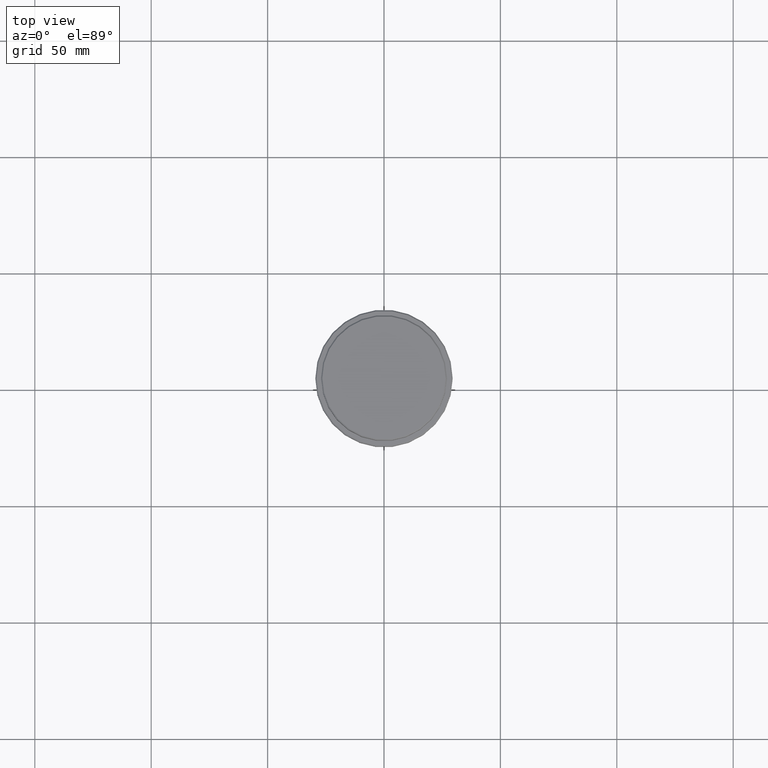
[diagram: clean part render]
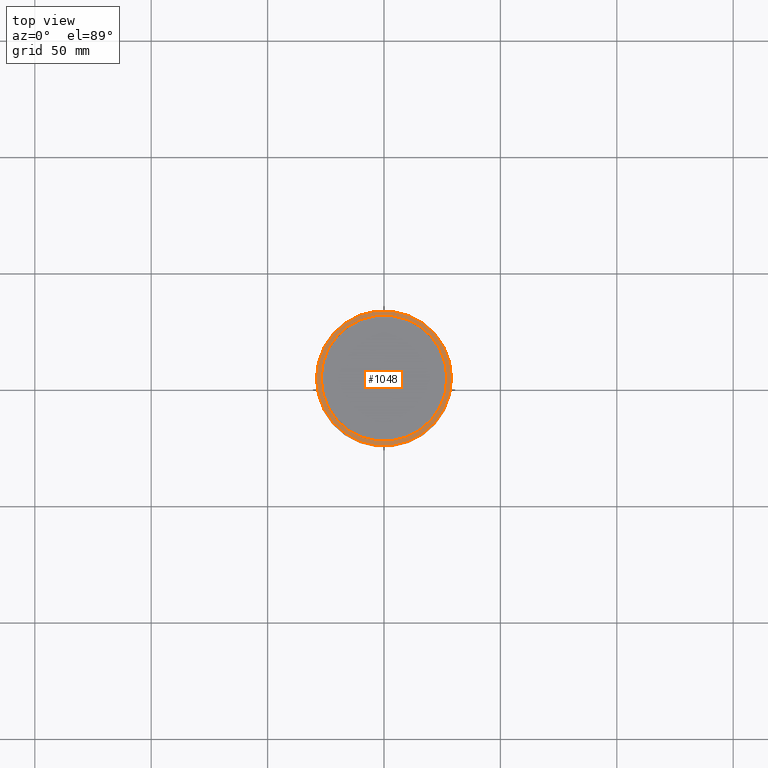
[diagram: same view with one face highlighted and labeled with its STEP entity id]
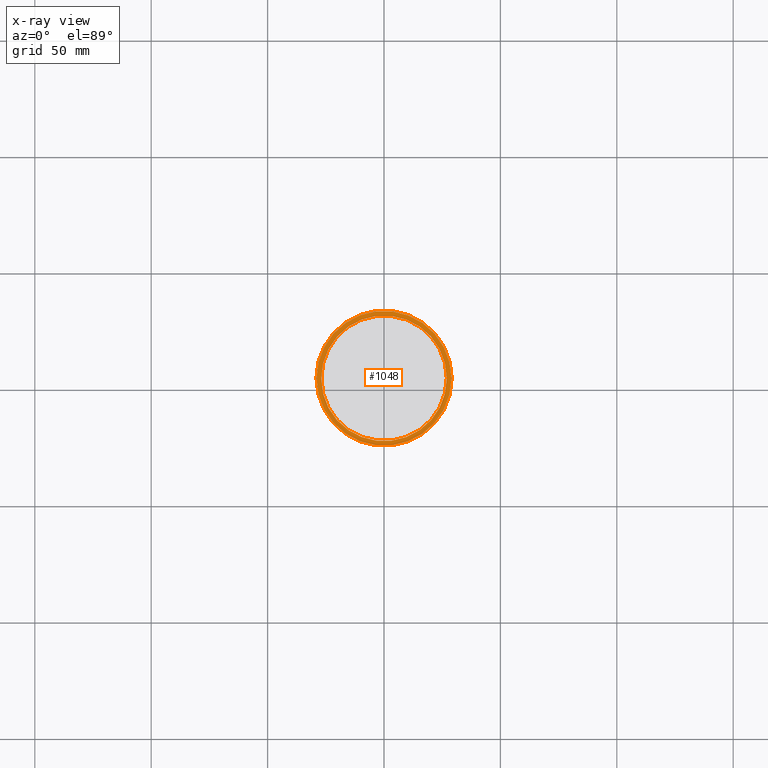
[diagram: x-ray of the same camera — body ghosted, the highlighted face saturated]
A machine part, top view. The second image highlights one B-rep face of the part: STEP entity #1048.
The next image is the same camera in x-ray: the body ghosted, the highlighted face saturated — about 0% of this face is hidden behind the body in this view.
In plain terms, the highlighted planar face has unit normal (0, -0, 1).
Its self-contained STEP definition (entity closure, byte-faithful):
#44 = AXIS2_PLACEMENT_3D ( 'NONE', #1158, #750, #396 ) ;
#49 = ORIENTED_EDGE ( 'NONE', *, *, #753, .T. ) ;
#74 = CIRCLE ( 'NONE', #1037, 28.99999999999999645 ) ;
#102 = VERTEX_POINT ( 'NONE', #1224 ) ;
#200 = EDGE_CURVE ( 'NONE', #1342, #1001, #850, .T. ) ;
#236 = AXIS2_PLACEMENT_3D ( 'NONE', #1139, #909, #388 ) ;
#323 = CARTESIAN_POINT ( 'NONE',  ( -26.99999999999999645, 3.306546357697853339E-15, -12.00000000000000355 ) ) ;
#381 = AXIS2_PLACEMENT_3D ( 'NONE', #1250, #926, #1130 ) ;
#388 = DIRECTION ( 'NONE',  ( 1.000000000000000000, 0.000000000000000000, 0.000000000000000000 ) ) ;
#396 = DIRECTION ( 'NONE',  ( 1.000000000000000000, 0.000000000000000000, 0.000000000000000000 ) ) ;
#410 = DIRECTION ( 'NONE',  ( 0.000000000000000000, 0.000000000000000000, -1.000000000000000000 ) ) ;
#450 = CARTESIAN_POINT ( 'NONE',  ( 0.000000000000000000, 0.000000000000000000, -12.00000000000000355 ) ) ;
#480 = CARTESIAN_POINT ( 'NONE',  ( 0.000000000000000000, 0.000000000000000000, -12.00000000000000355 ) ) ;
#494 = CIRCLE ( 'NONE', #916, 26.99999999999999645 ) ;
#525 = DIRECTION ( 'NONE',  ( 1.000000000000000000, 0.000000000000000000, 0.000000000000000000 ) ) ;
#542 = ORIENTED_EDGE ( 'NONE', *, *, #200, .T. ) ;
#554 = DIRECTION ( 'NONE',  ( 1.000000000000000000, 0.000000000000000000, 0.000000000000000000 ) ) ;
#582 = CIRCLE ( 'NONE', #44, 28.99999999999999645 ) ;
#620 = CARTESIAN_POINT ( 'NONE',  ( -28.99999999999999645, 0.000000000000000000, -12.00000000000000355 ) ) ;
#665 = DIRECTION ( 'NONE',  ( -0.000000000000000000, -0.000000000000000000, 1.000000000000000000 ) ) ;
#692 = EDGE_CURVE ( 'NONE', #1001, #1342, #494, .T. ) ;
#705 = FACE_OUTER_BOUND ( 'NONE', #1091, .T. ) ;
#750 = DIRECTION ( 'NONE',  ( -0.000000000000000000, -0.000000000000000000, 1.000000000000000000 ) ) ;
#753 = EDGE_CURVE ( 'NONE', #1267, #102, #582, .T. ) ;
#778 = ORIENTED_EDGE ( 'NONE', *, *, #692, .T. ) ;
#850 = CIRCLE ( 'NONE', #236, 26.99999999999999645 ) ;
#869 = EDGE_LOOP ( 'NONE', ( #778, #542 ) ) ;
#909 = DIRECTION ( 'NONE',  ( 0.000000000000000000, 0.000000000000000000, -1.000000000000000000 ) ) ;
#916 = AXIS2_PLACEMENT_3D ( 'NONE', #480, #410, #525 ) ;
#926 = DIRECTION ( 'NONE',  ( 0.000000000000000000, -0.000000000000000000, 1.000000000000000000 ) ) ;
#1001 = VERTEX_POINT ( 'NONE', #1019 ) ;
#1003 = FACE_BOUND ( 'NONE', #869, .T. ) ;
#1019 = CARTESIAN_POINT ( 'NONE',  ( 26.99999999999999645, 0.000000000000000000, -12.00000000000000355 ) ) ;
#1037 = AXIS2_PLACEMENT_3D ( 'NONE', #450, #665, #554 ) ;
#1048 = ADVANCED_FACE ( 'NONE', ( #705, #1003 ), #1228, .T. ) ;
#1091 = EDGE_LOOP ( 'NONE', ( #49, #1129 ) ) ;
#1129 = ORIENTED_EDGE ( 'NONE', *, *, #1381, .T. ) ;
#1130 = DIRECTION ( 'NONE',  ( 1.000000000000000000, 0.000000000000000000, 0.000000000000000000 ) ) ;
#1139 = CARTESIAN_POINT ( 'NONE',  ( 0.000000000000000000, 0.000000000000000000, -12.00000000000000355 ) ) ;
#1158 = CARTESIAN_POINT ( 'NONE',  ( 0.000000000000000000, 0.000000000000000000, -12.00000000000000355 ) ) ;
#1224 = CARTESIAN_POINT ( 'NONE',  ( 28.99999999999999645, 3.582091887506007817E-15, -12.00000000000000355 ) ) ;
#1228 = PLANE ( 'NONE',  #381 ) ;
#1250 = CARTESIAN_POINT ( 'NONE',  ( 0.000000000000000000, 26.49999999999999645, -12.00000000000000355 ) ) ;
#1267 = VERTEX_POINT ( 'NONE', #620 ) ;
#1342 = VERTEX_POINT ( 'NONE', #323 ) ;
#1381 = EDGE_CURVE ( 'NONE', #102, #1267, #74, .T. ) ;